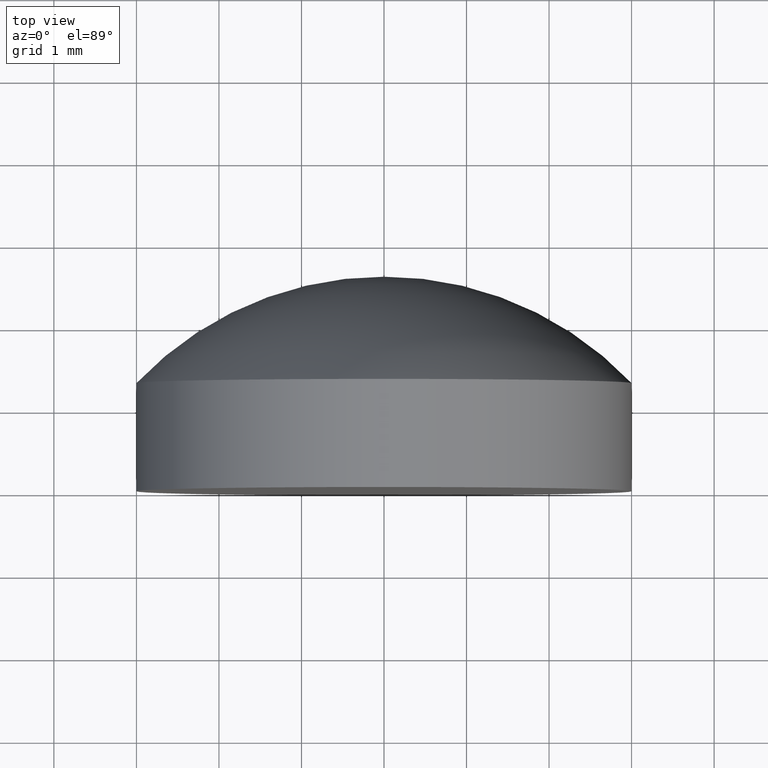
[diagram: clean part render]
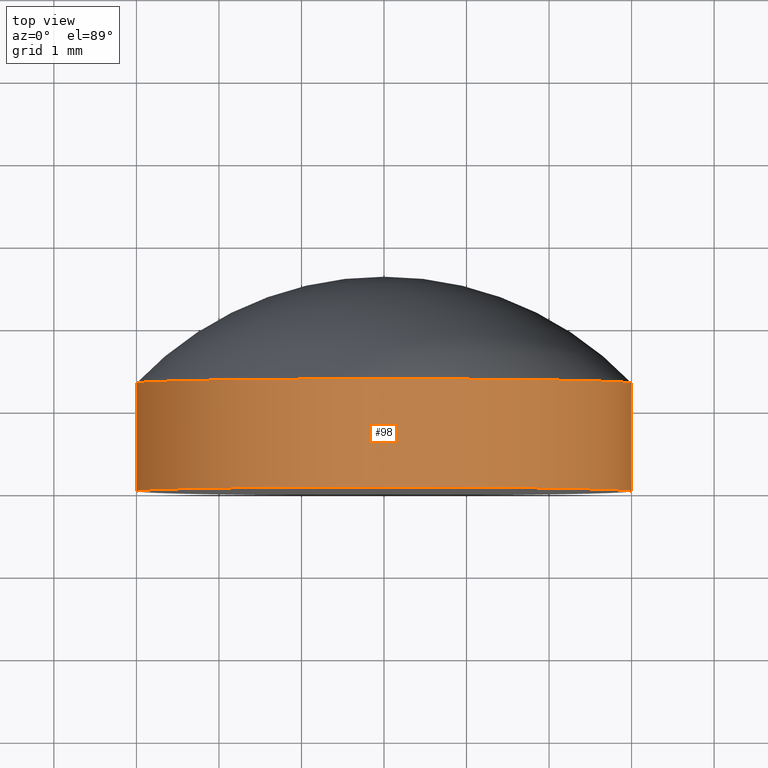
[diagram: same view with one face highlighted and labeled with its STEP entity id]
A machine part, top view. The second image highlights one B-rep face of the part: STEP entity #98.
In plain terms, the highlighted cylindrical surface (partial cylindrical patch) has radius 3 mm, axis along (0, 1, -0).
Its self-contained STEP definition (entity closure, byte-faithful):
#1 = ORIENTED_EDGE ( 'NONE', *, *, #90, .T. ) ;
#3 = DIRECTION ( 'NONE',  ( -1.000000000000000000, 7.228014483236696555E-16, 0.000000000000000000 ) ) ;
#12 = AXIS2_PLACEMENT_3D ( 'NONE', #15, #102, #187 ) ;
#14 = CARTESIAN_POINT ( 'NONE',  ( 9.471465446405579432E-16, 1.309999999999997389, 0.000000000000000000 ) ) ;
#15 = CARTESIAN_POINT ( 'NONE',  ( -1.925929944387235853E-30, -2.602085213965210642E-15, 0.000000000000000000 ) ) ;
#16 = CARTESIAN_POINT ( 'NONE',  ( -2.999999999999997780, 2.600000000000001865, 0.000000000000000000 ) ) ;
#17 = FACE_OUTER_BOUND ( 'NONE', #29, .T. ) ;
#20 = CARTESIAN_POINT ( 'NONE',  ( -2.999999999999998668, 1.309999999999999609, 0.000000000000000000 ) ) ;
#27 = ORIENTED_EDGE ( 'NONE', *, *, #28, .T. ) ;
#28 = EDGE_CURVE ( 'NONE', #169, #122, #67, .T. ) ;
#29 = EDGE_LOOP ( 'NONE', ( #27, #1, #42, #118 ) ) ;
#34 = CYLINDRICAL_SURFACE ( 'NONE', #123, 2.999999999999999556 ) ;
#36 = CARTESIAN_POINT ( 'NONE',  ( -2.999999999999999112, -4.330473254753795076E-16, 0.000000000000000000 ) ) ;
#38 = DIRECTION ( 'NONE',  ( -1.000000000000000000, 7.228014483236697541E-16, 0.000000000000000000 ) ) ;
#42 = ORIENTED_EDGE ( 'NONE', *, *, #84, .F. ) ;
#67 = CIRCLE ( 'NONE', #12, 2.999999999999999112 ) ;
#77 = CARTESIAN_POINT ( 'NONE',  ( 3.000000000000001332, 2.599999999999997868, 3.673940397442059375E-16 ) ) ;
#78 = LINE ( 'NONE', #16, #153 ) ;
#84 = EDGE_CURVE ( 'NONE', #184, #152, #164, .T. ) ;
#90 = EDGE_CURVE ( 'NONE', #122, #152, #94, .T. ) ;
#94 = LINE ( 'NONE', #77, #112 ) ;
#98 = ADVANCED_FACE ( 'NONE', ( #17 ), #34, .T. ) ;
#102 = DIRECTION ( 'NONE',  ( 7.230126294966106081E-16, 1.000000000000000000, -0.000000000000000000 ) ) ;
#106 = DIRECTION ( 'NONE',  ( 7.230126294966106081E-16, 1.000000000000000000, -0.000000000000000000 ) ) ;
#112 = VECTOR ( 'NONE', #173, 1000.000000000000000 ) ;
#118 = ORIENTED_EDGE ( 'NONE', *, *, #198, .F. ) ;
#122 = VERTEX_POINT ( 'NONE', #124 ) ;
#123 = AXIS2_PLACEMENT_3D ( 'NONE', #192, #142, #38 ) ;
#124 = CARTESIAN_POINT ( 'NONE',  ( 2.999999999999999112, -4.771123102455041973E-15, 3.673940397442059375E-16 ) ) ;
#137 = AXIS2_PLACEMENT_3D ( 'NONE', #14, #106, #3 ) ;
#142 = DIRECTION ( 'NONE',  ( 7.230126294966106081E-16, 1.000000000000000000, -0.000000000000000000 ) ) ;
#148 = DIRECTION ( 'NONE',  ( 7.230126294966106081E-16, 1.000000000000000000, -0.000000000000000000 ) ) ;
#152 = VERTEX_POINT ( 'NONE', #189 ) ;
#153 = VECTOR ( 'NONE', #148, 1000.000000000000000 ) ;
#164 = CIRCLE ( 'NONE', #137, 3.000000000000000000 ) ;
#169 = VERTEX_POINT ( 'NONE', #36 ) ;
#173 = DIRECTION ( 'NONE',  ( 7.230126294966106081E-16, 1.000000000000000000, -0.000000000000000000 ) ) ;
#184 = VERTEX_POINT ( 'NONE', #20 ) ;
#187 = DIRECTION ( 'NONE',  ( -1.000000000000000000, 7.230126294966107067E-16, 0.000000000000000000 ) ) ;
#189 = CARTESIAN_POINT ( 'NONE',  ( 3.000000000000000888, 1.309999999999995168, 3.673940397442059375E-16 ) ) ;
#192 = CARTESIAN_POINT ( 'NONE',  ( 1.879832836691187522E-15, 2.600000000000000089, 0.000000000000000000 ) ) ;
#198 = EDGE_CURVE ( 'NONE', #169, #184, #78, .T. ) ;